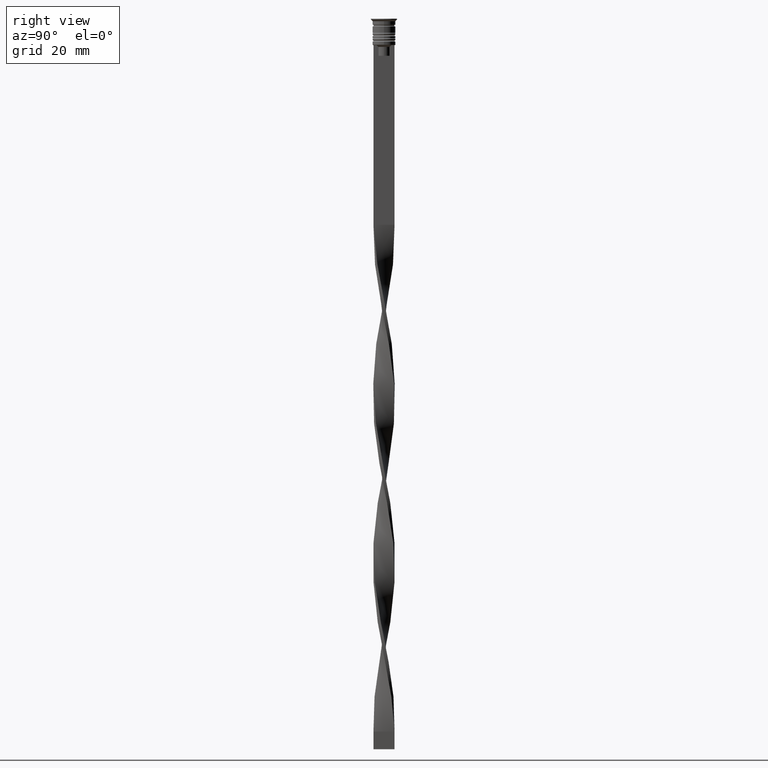
[diagram: clean part render]
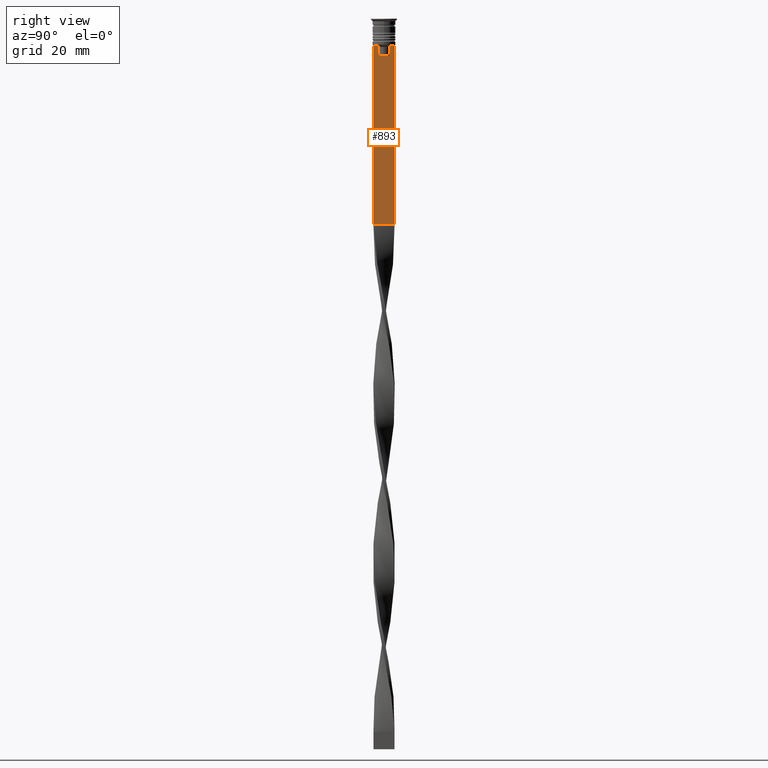
[diagram: same view with one face highlighted and labeled with its STEP entity id]
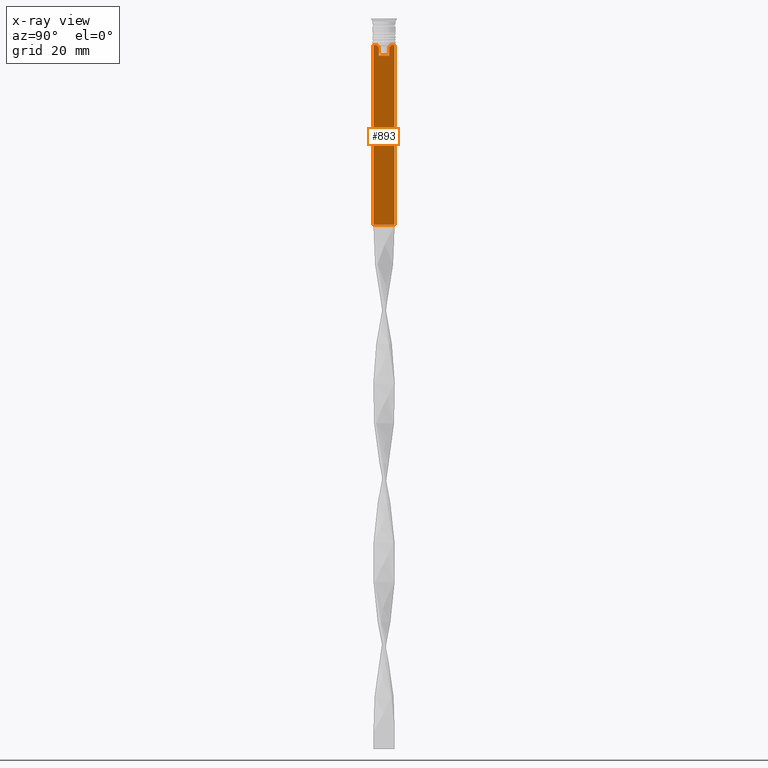
[diagram: x-ray of the same camera — body ghosted, the highlighted face saturated]
A machine part, right view. The second image highlights one B-rep face of the part: STEP entity #893.
The next image is the same camera in x-ray: the body ghosted, the highlighted face saturated — about 0% of this face is hidden behind the body in this view.
In plain terms, the highlighted planar face has unit normal (-1, 0, 0).
Its self-contained STEP definition (entity closure, byte-faithful):
#40 = LINE ( 'NONE', #2231, #1963 ) ;
#47 = CARTESIAN_POINT ( 'NONE',  ( 0.4999999999999998890, -1.746240429054158660, -7.834351036433149673 ) ) ;
#84 = CARTESIAN_POINT ( 'NONE',  ( 0.4999999999999998890, 1.918907889994530436, -7.667424704779945976 ) ) ;
#146 = ORIENTED_EDGE ( 'NONE', *, *, #1255, .T. ) ;
#158 = CARTESIAN_POINT ( 'NONE',  ( 0.4999999999999998890, -1.572418519351642452, 0.000000000000000000 ) ) ;
#207 = LINE ( 'NONE', #3051, #3207 ) ;
#215 = FACE_OUTER_BOUND ( 'NONE', #2796, .T. ) ;
#379 = DIRECTION ( 'NONE',  ( 0.000000000000000000, -1.000000000000000000, 0.000000000000000000 ) ) ;
#417 = CARTESIAN_POINT ( 'NONE',  ( 0.4999999999999998890, 2.091052366632653481, -7.500000000000000000 ) ) ;
#446 = DIRECTION ( 'NONE',  ( 0.000000000000000000, 1.000000000000000000, 0.000000000000000000 ) ) ;
#589 = VERTEX_POINT ( 'NONE', #1222 ) ;
#609 = VERTEX_POINT ( 'NONE', #2971 ) ;
#628 = B_SPLINE_CURVE_WITH_KNOTS ( 'NONE', 3,
 ( #926, #47, #1464, #3430 ),
 .UNSPECIFIED., .F., .F.,
 ( 4, 4 ),
 ( 0.008356915209744729747, 0.009073319521387651632 ),
 .UNSPECIFIED. ) ;
#690 = LINE ( 'NONE', #3257, #2561 ) ;
#735 = VECTOR ( 'NONE', #3509, 1000.000000000000000 ) ;
#767 = DIRECTION ( 'NONE',  ( -1.000000000000000000, 0.000000000000000000, 0.000000000000000000 ) ) ;
#771 = CARTESIAN_POINT ( 'NONE',  ( 0.4999999999999998890, 3.000000000000000000, -58.50000000000000000 ) ) ;
#893 = ADVANCED_FACE ( 'NONE', ( #215 ), #1632, .F. ) ;
#926 = CARTESIAN_POINT ( 'NONE',  ( 0.4999999999999998890, -1.572418519351642452, -8.000000000000000000 ) ) ;
#1013 = CARTESIAN_POINT ( 'NONE',  ( 0.4999999999999998890, -3.000000000000000000, -7.500000000000000000 ) ) ;
#1046 = DIRECTION ( 'NONE',  ( 0.000000000000000000, 0.000000000000000000, -1.000000000000000000 ) ) ;
#1199 = CARTESIAN_POINT ( 'NONE',  ( 0.4999999999999998890, 1.572418519351642452, -8.000000000000000000 ) ) ;
#1222 = CARTESIAN_POINT ( 'NONE',  ( 0.4999999999999998890, 1.572418519351642452, -10.49999999999999822 ) ) ;
#1255 = EDGE_CURVE ( 'NONE', #2612, #2889, #690, .T. ) ;
#1286 = VERTEX_POINT ( 'NONE', #1199 ) ;
#1327 = EDGE_CURVE ( 'NONE', #609, #1286, #2357, .T. ) ;
#1464 = CARTESIAN_POINT ( 'NONE',  ( 0.4999999999999998890, -1.918909712772151721, -7.667422931978337353 ) ) ;
#1548 = VERTEX_POINT ( 'NONE', #1873 ) ;
#1601 = CARTESIAN_POINT ( 'NONE',  ( 0.4999999999999998890, -3.000000000000000000, -7.500000000000000000 ) ) ;
#1632 = PLANE ( 'NONE',  #3555 ) ;
#1656 = EDGE_CURVE ( 'NONE', #589, #1782, #2949, .T. ) ;
#1675 = CARTESIAN_POINT ( 'NONE',  ( 0.4999999999999998890, -1.572418519351642452, -8.000000000000000000 ) ) ;
#1699 = ORIENTED_EDGE ( 'NONE', *, *, #3516, .F. ) ;
#1782 = VERTEX_POINT ( 'NONE', #3539 ) ;
#1841 = VERTEX_POINT ( 'NONE', #771 ) ;
#1846 = LINE ( 'NONE', #2980, #1910 ) ;
#1856 = CARTESIAN_POINT ( 'NONE',  ( 0.4999999999999998890, 1.572418519351642452, -8.000000000000000000 ) ) ;
#1863 = VECTOR ( 'NONE', #1046, 1000.000000000000000 ) ;
#1873 = CARTESIAN_POINT ( 'NONE',  ( 0.4999999999999998890, 3.000000000000000000, -7.500000000000000000 ) ) ;
#1910 = VECTOR ( 'NONE', #446, 1000.000000000000000 ) ;
#1927 = CARTESIAN_POINT ( 'NONE',  ( 0.4999999999999998890, 3.000000000000000000, -1.417237469701779329 ) ) ;
#1963 = VECTOR ( 'NONE', #3117, 1000.000000000000000 ) ;
#1975 = EDGE_CURVE ( 'NONE', #3538, #1841, #1846, .T. ) ;
#1983 = ORIENTED_EDGE ( 'NONE', *, *, #2664, .T. ) ;
#2004 = EDGE_CURVE ( 'NONE', #1286, #589, #40, .T. ) ;
#2071 = LINE ( 'NONE', #158, #2260 ) ;
#2111 = CARTESIAN_POINT ( 'NONE',  ( 0.4999999999999998890, 1.650000000000003464, -10.49999999999999822 ) ) ;
#2116 = CARTESIAN_POINT ( 'NONE',  ( 0.4999999999999998890, 1.746261636039131870, -7.834330826581080487 ) ) ;
#2127 = DIRECTION ( 'NONE',  ( -0.000000000000000000, -0.000000000000000000, 1.000000000000000000 ) ) ;
#2144 = DIRECTION ( 'NONE',  ( 0.000000000000000000, -1.000000000000000000, 0.000000000000000000 ) ) ;
#2155 = DIRECTION ( 'NONE',  ( 0.000000000000000000, 0.000000000000000000, 1.000000000000000000 ) ) ;
#2195 = DIRECTION ( 'NONE',  ( 0.000000000000000000, 0.000000000000000000, -1.000000000000000000 ) ) ;
#2231 = CARTESIAN_POINT ( 'NONE',  ( 0.4999999999999998890, 1.572418519351642452, 0.000000000000000000 ) ) ;
#2241 = ORIENTED_EDGE ( 'NONE', *, *, #3418, .T. ) ;
#2260 = VECTOR ( 'NONE', #2127, 1000.000000000000000 ) ;
#2357 = B_SPLINE_CURVE_WITH_KNOTS ( 'NONE', 3,
 ( #417, #84, #2116, #1856 ),
 .UNSPECIFIED., .F., .F.,
 ( 4, 4 ),
 ( 0.003696428037903523069, 0.004416830248125226156 ),
 .UNSPECIFIED. ) ;
#2504 = VECTOR ( 'NONE', #2144, 1000.000000000000000 ) ;
#2561 = VECTOR ( 'NONE', #379, 1000.000000000000000 ) ;
#2571 = EDGE_CURVE ( 'NONE', #1782, #3568, #2071, .T. ) ;
#2612 = VERTEX_POINT ( 'NONE', #2931 ) ;
#2664 = EDGE_CURVE ( 'NONE', #2889, #3538, #207, .T. ) ;
#2683 = ORIENTED_EDGE ( 'NONE', *, *, #2571, .T. ) ;
#2726 = ORIENTED_EDGE ( 'NONE', *, *, #1656, .T. ) ;
#2763 = CARTESIAN_POINT ( 'NONE',  ( 0.4999999999999998890, -3.000000000000000000, -1.417237469701779329 ) ) ;
#2796 = EDGE_LOOP ( 'NONE', ( #2241, #3546, #3401, #2726, #2683, #3108, #146, #1983, #3042, #1699 ) ) ;
#2889 = VERTEX_POINT ( 'NONE', #1601 ) ;
#2931 = CARTESIAN_POINT ( 'NONE',  ( 0.4999999999999998890, -2.091052366632653481, -7.500000000000000000 ) ) ;
#2949 = LINE ( 'NONE', #2111, #735 ) ;
#2971 = CARTESIAN_POINT ( 'NONE',  ( 0.4999999999999998890, 2.091052366632653481, -7.500000000000000000 ) ) ;
#2980 = CARTESIAN_POINT ( 'NONE',  ( 0.4999999999999998890, -3.000000000000000000, -58.50000000000000000 ) ) ;
#3042 = ORIENTED_EDGE ( 'NONE', *, *, #1975, .T. ) ;
#3051 = CARTESIAN_POINT ( 'NONE',  ( 0.4999999999999998890, -3.000000000000000000, -1.417237469701779329 ) ) ;
#3067 = EDGE_CURVE ( 'NONE', #3568, #2612, #628, .T. ) ;
#3080 = CARTESIAN_POINT ( 'NONE',  ( 0.4999999999999998890, -3.000000000000000000, -58.50000000000000000 ) ) ;
#3108 = ORIENTED_EDGE ( 'NONE', *, *, #3067, .T. ) ;
#3117 = DIRECTION ( 'NONE',  ( 0.000000000000000000, 0.000000000000000000, -1.000000000000000000 ) ) ;
#3207 = VECTOR ( 'NONE', #2195, 1000.000000000000000 ) ;
#3257 = CARTESIAN_POINT ( 'NONE',  ( 0.4999999999999998890, -3.000000000000000000, -7.500000000000000000 ) ) ;
#3401 = ORIENTED_EDGE ( 'NONE', *, *, #2004, .T. ) ;
#3418 = EDGE_CURVE ( 'NONE', #1548, #609, #3542, .T. ) ;
#3430 = CARTESIAN_POINT ( 'NONE',  ( 0.4999999999999998890, -2.091052366632653481, -7.500000000000000000 ) ) ;
#3509 = DIRECTION ( 'NONE',  ( 0.000000000000000000, -1.000000000000000000, 0.000000000000000000 ) ) ;
#3516 = EDGE_CURVE ( 'NONE', #1548, #1841, #3594, .T. ) ;
#3538 = VERTEX_POINT ( 'NONE', #3080 ) ;
#3539 = CARTESIAN_POINT ( 'NONE',  ( 0.4999999999999998890, -1.572418519351642452, -10.49999999999999822 ) ) ;
#3542 = LINE ( 'NONE', #1013, #2504 ) ;
#3546 = ORIENTED_EDGE ( 'NONE', *, *, #1327, .T. ) ;
#3555 = AXIS2_PLACEMENT_3D ( 'NONE', #2763, #767, #2155 ) ;
#3568 = VERTEX_POINT ( 'NONE', #1675 ) ;
#3594 = LINE ( 'NONE', #1927, #1863 ) ;